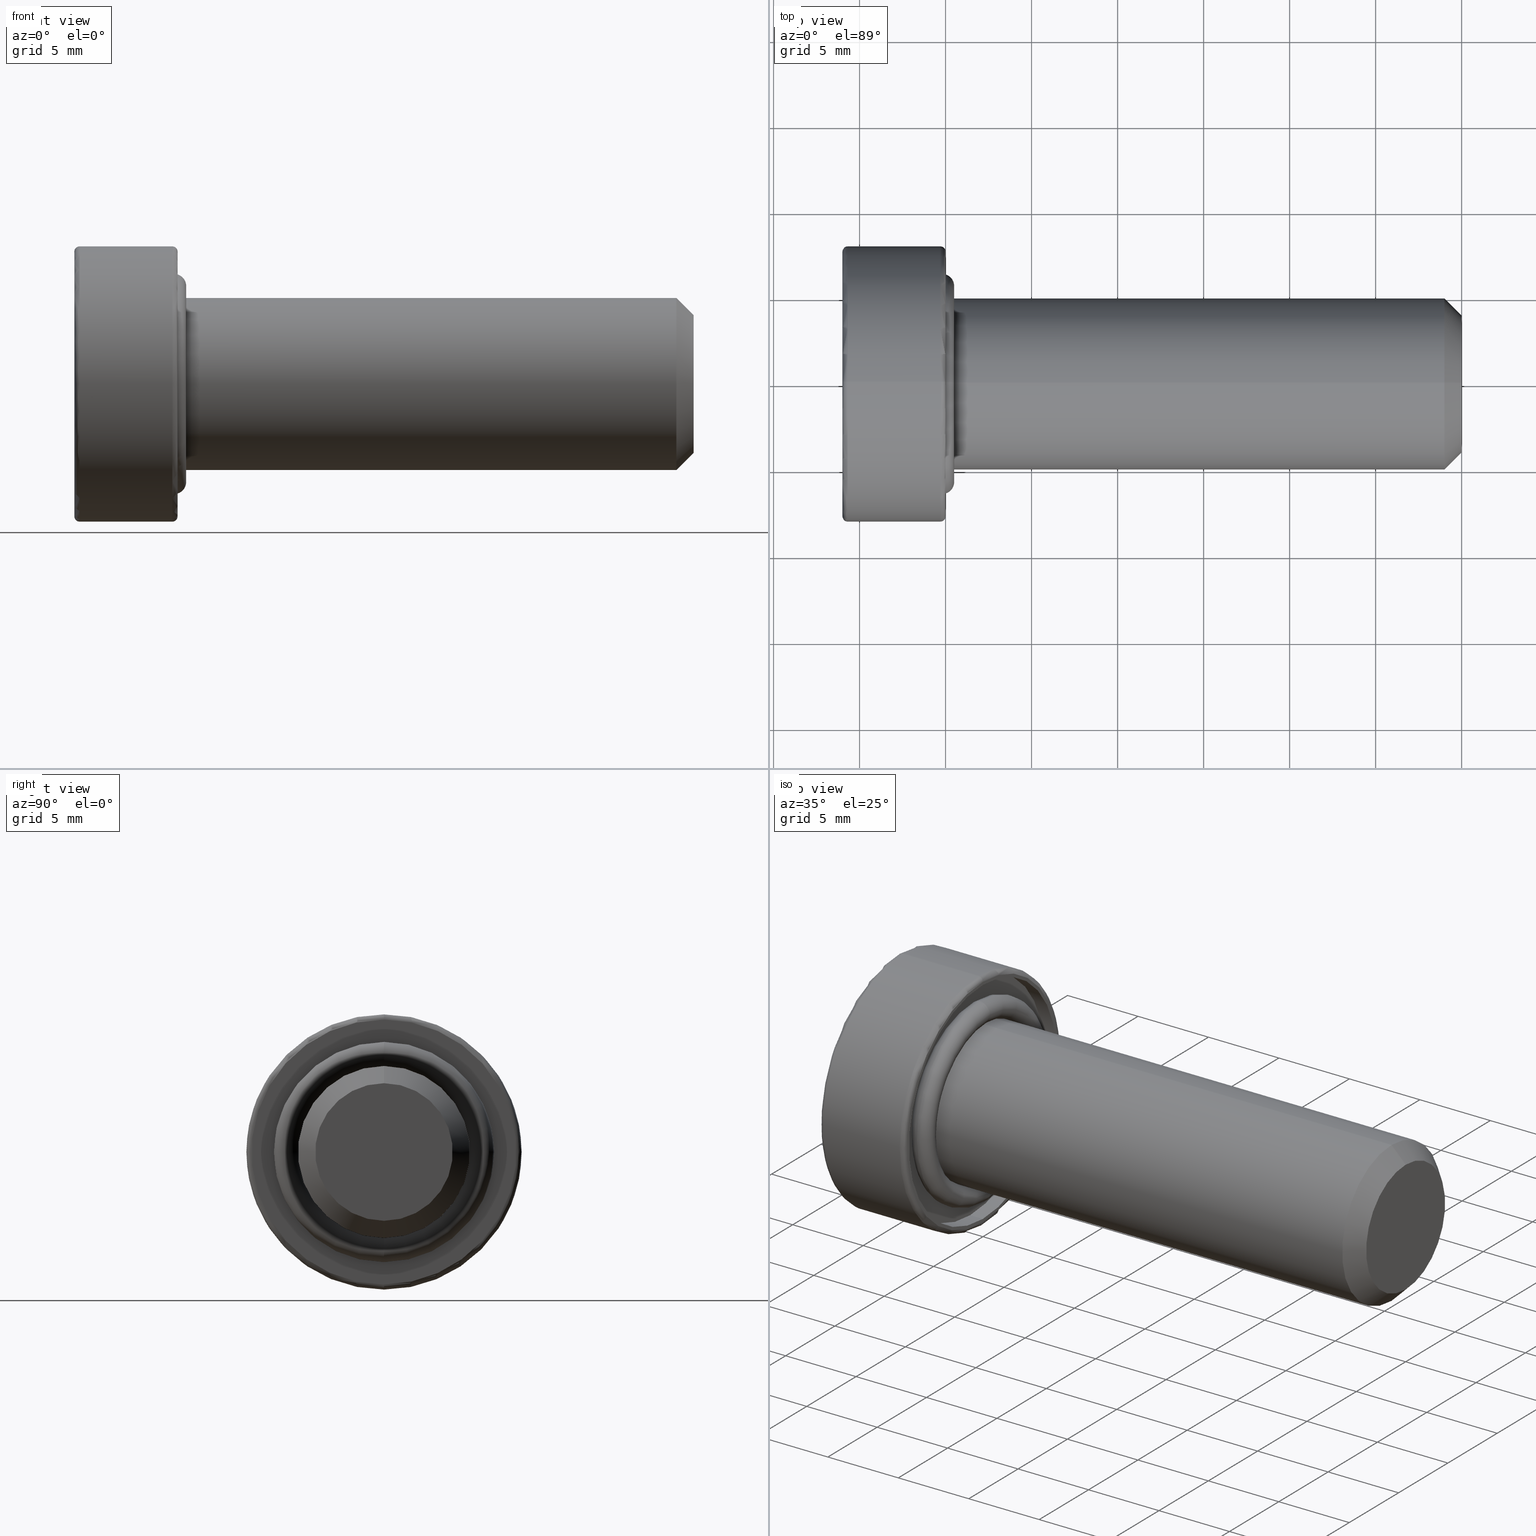
[diagram: canonical four-view strip — front | top / right | iso, engineering-drawing reading convention]
A machine part, canonical four-view strip (front | top / right | iso — engineering-drawing reading convention). The complete STEP part file that produces these views, byte-faithful:
ISO-10303-21;
HEADER;
FILE_DESCRIPTION (( 'STEP AP214' ),
    '1' );
FILE_NAME ('TL_418_M10_30.STEP',
    '2016-01-25T00:36:40',
    ( '' ),
    ( '' ),
    'SwSTEP 2.0',
    'SolidWorks 2015',
    '' );
FILE_SCHEMA (( 'AUTOMOTIVE_DESIGN' ));
ENDSEC;

DATA;
#1 = DIRECTION ( 'NONE',  ( 0.0000000000000000000, 0.0000000000000000000, -1.000000000000000000 ) ) ;
#2 = EDGE_CURVE ( 'NONE', #442, #267, #496, .T. ) ;
#3 = PRODUCT_CONTEXT ( 'NONE', #737, 'mechanical' ) ;
#4 = CARTESIAN_POINT ( 'NONE',  ( -6.000000000000000000, 1.732050807568654900, 2.999999999999611400 ) ) ;
#5 = DIRECTION ( 'NONE',  ( 1.000000000000000000, -0.0000000000000000000, -0.0000000000000000000 ) ) ;
#6 = DIRECTION ( 'NONE',  ( 0.0000000000000000000, 1.224646799147353200E-016, 1.000000000000000000 ) ) ;
#7 = TOROIDAL_SURFACE ( 'NONE', #754, 5.700000000000000200, 0.6999999999999997300 ) ;
#8 = STYLED_ITEM ( 'NONE', ( #648 ), #538 ) ;
#9 = EDGE_LOOP ( 'NONE', ( #709, #736, #11, #387 ) ) ;
#10 = CARTESIAN_POINT ( 'NONE',  ( -6.000000000000000000, -1.732050807568653800, 2.999999999999613200 ) ) ;
#11 = ORIENTED_EDGE ( 'NONE', *, *, #392, .F. ) ;
#12 = DIRECTION ( 'NONE',  ( 0.0000000000000000000, 0.0000000000000000000, -1.000000000000000000 ) ) ;
#13 = EDGE_CURVE ( 'NONE', #717, #497, #816, .T. ) ;
#14 = ORIENTED_EDGE ( 'NONE', *, *, #536, .F. ) ;
#15 = LINE ( 'NONE', #333, #327 ) ;
#16 = DIRECTION ( 'NONE',  ( 1.000000000000000000, 0.0000000000000000000, 0.0000000000000000000 ) ) ;
#17 = ADVANCED_FACE ( 'NONE', ( #666 ), #631, .T. ) ;
#18 = AXIS2_PLACEMENT_3D ( 'NONE', #807, #755, #450 ) ;
#19 = ORIENTED_EDGE ( 'NONE', *, *, #662, .T. ) ;
#20 = ORIENTED_EDGE ( 'NONE', *, *, #692, .F. ) ;
#21 = EDGE_CURVE ( 'NONE', #293, #30, #147, .T. ) ;
#22 = CARTESIAN_POINT ( 'NONE',  ( -2.000000000000000000, 3.464101615137311200, -1.734723475976807100E-015 ) ) ;
#23 = ADVANCED_FACE ( 'NONE', ( #649 ), #165, .F. ) ;
#24 = AXIS2_PLACEMENT_3D ( 'NONE', #752, #373, #1 ) ;
#25 = DIRECTION ( 'NONE',  ( -1.000000000000000000, -0.0000000000000000000, -0.0000000000000000000 ) ) ;
#26 = SURFACE_STYLE_FILL_AREA ( #474 ) ;
#27 = CONICAL_SURFACE ( 'NONE', #413, 3.999999999999996400, 0.7853981633974479500 ) ;
#28 = ORIENTED_EDGE ( 'NONE', *, *, #487, .T. ) ;
#29 = CARTESIAN_POINT ( 'NONE',  ( -2.000000000000000000, -3.464101615137309900, 0.0000000000000000000 ) ) ;
#30 = VERTEX_POINT ( 'NONE', #229 ) ;
#31 = CARTESIAN_POINT ( 'NONE',  ( -6.000000000000000000, 0.0000000000000000000, 0.0000000000000000000 ) ) ;
#32 = ORIENTED_EDGE ( 'NONE', *, *, #148, .T. ) ;
#33 = DIRECTION ( 'NONE',  ( -1.000000000000000000, -0.0000000000000000000, -0.0000000000000000000 ) ) ;
#34 = AXIS2_PLACEMENT_3D ( 'NONE', #231, #669, #290 ) ;
#35 = CIRCLE ( 'NONE', #573, 7.500000000000000000 ) ;
#36 = DIRECTION ( 'NONE',  ( 0.0000000000000000000, 0.0000000000000000000, -1.000000000000000000 ) ) ;
#37 = CARTESIAN_POINT ( 'NONE',  ( -0.2999999999999999300, 0.0000000000000000000, -8.000000000000000000 ) ) ;
#38 = AXIS2_PLACEMENT_3D ( 'NONE', #136, #193, #445 ) ;
#39 = SHAPE_REPRESENTATION ( 'TL_418_M10_30', ( #101, #18 ), #65 ) ;
#40 = EDGE_LOOP ( 'NONE', ( #632, #230, #323, #676 ) ) ;
#41 = DIRECTION ( 'NONE',  ( -1.000000000000000000, -0.0000000000000000000, -0.0000000000000000000 ) ) ;
#42 = ORIENTED_EDGE ( 'NONE', *, *, #21, .F. ) ;
#43 = ORIENTED_EDGE ( 'NONE', *, *, #790, .T. ) ;
#44 = PLANE ( 'NONE',  #369 ) ;
#45 = EDGE_CURVE ( 'NONE', #332, #381, #476, .T. ) ;
#46 = FACE_BOUND ( 'NONE', #769, .T. ) ;
#47 = DIRECTION ( 'NONE',  ( 0.0000000000000000000, 0.0000000000000000000, -1.000000000000000000 ) ) ;
#48 = PRODUCT_DEFINITION_SHAPE ( 'NONE', 'NONE',  #820 ) ;
#49 = FACE_OUTER_BOUND ( 'NONE', #500, .T. ) ;
#50 = ORIENTED_EDGE ( 'NONE', *, *, #749, .T. ) ;
#51 = DIRECTION ( 'NONE',  ( -0.0000000000000000000, -0.5000000000000008900, -0.8660254037844381500 ) ) ;
#52 = VERTEX_POINT ( 'NONE', #135 ) ;
#53 = AXIS2_PLACEMENT_3D ( 'NONE', #22, #150, #584 ) ;
#54 = EDGE_LOOP ( 'NONE', ( #32, #529, #509, #795 ) ) ;
#55 = EDGE_LOOP ( 'NONE', ( #468, #421, #217, #818 ) ) ;
#56 = CARTESIAN_POINT ( 'NONE',  ( 0.0000000000000000000, 0.0000000000000000000, 0.0000000000000000000 ) ) ;
#57 = DIRECTION ( 'NONE',  ( 0.0000000000000000000, 1.000000000000000000, -1.224646799147353200E-016 ) ) ;
#58 = DIRECTION ( 'NONE',  ( 0.0000000000000000000, 0.0000000000000000000, -1.000000000000000000 ) ) ;
#59 = EDGE_CURVE ( 'NONE', #465, #293, #291, .T. ) ;
#60 = FACE_OUTER_BOUND ( 'NONE', #419, .T. ) ;
#61 = ORIENTED_EDGE ( 'NONE', *, *, #269, .F. ) ;
#62 = CARTESIAN_POINT ( 'NONE',  ( -6.000000000000000000, -3.464101615137309900, 0.0000000000000000000 ) ) ;
#63 = DIRECTION ( 'NONE',  ( 0.0000000000000000000, 0.0000000000000000000, -1.000000000000000000 ) ) ;
#64 = ORIENTED_EDGE ( 'NONE', *, *, #173, .F. ) ;
#65 =( GEOMETRIC_REPRESENTATION_CONTEXT ( 3 ) GLOBAL_UNCERTAINTY_ASSIGNED_CONTEXT ( ( #478 ) ) GLOBAL_UNIT_ASSIGNED_CONTEXT ( ( #548, #513, #265 ) ) REPRESENTATION_CONTEXT ( 'NONE', 'WORKASPACE' ) );
#66 = EDGE_CURVE ( 'NONE', #279, #793, #458, .T. ) ;
#67 = ORIENTED_EDGE ( 'NONE', *, *, #13, .F. ) ;
#68 = DIRECTION ( 'NONE',  ( 0.0000000000000000000, 1.000000000000000000, -1.224646799147353200E-016 ) ) ;
#69 = DIRECTION ( 'NONE',  ( 1.000000000000000000, 0.0000000000000000000, 0.0000000000000000000 ) ) ;
#70 = LINE ( 'NONE', #596, #215 ) ;
#71 = CYLINDRICAL_SURFACE ( 'NONE', #330, 7.500000000000000000 ) ;
#72 = ORIENTED_EDGE ( 'NONE', *, *, #403, .F. ) ;
#73 = ORIENTED_EDGE ( 'NONE', *, *, #777, .T. ) ;
#74 = PRODUCT_CONTEXT ( 'NONE', #696, 'mechanical' ) ;
#75 = VERTEX_POINT ( 'NONE', #304 ) ;
#76 = ORIENTED_EDGE ( 'NONE', *, *, #621, .F. ) ;
#77 = DIRECTION ( 'NONE',  ( 1.000000000000000000, 0.0000000000000000000, 0.0000000000000000000 ) ) ;
#78 = LINE ( 'NONE', #702, #724 ) ;
#79 = AXIS2_PLACEMENT_3D ( 'NONE', #110, #544, #172 ) ;
#80 = DIRECTION ( 'NONE',  ( 0.0000000000000000000, 0.0000000000000000000, -1.000000000000000000 ) ) ;
#81 = CARTESIAN_POINT ( 'NONE',  ( 0.0000000000000000000, 0.0000000000000000000, 0.0000000000000000000 ) ) ;
#82 = DIRECTION ( 'NONE',  ( 1.000000000000000000, 0.0000000000000000000, 0.0000000000000000000 ) ) ;
#83 = AXIS2_PLACEMENT_3D ( 'NONE', #627, #612, #185 ) ;
#84 = ORIENTED_EDGE ( 'NONE', *, *, #786, .T. ) ;
#85 = DIRECTION ( 'NONE',  ( 1.000000000000000000, 0.0000000000000000000, 0.0000000000000000000 ) ) ;
#86 = LINE ( 'NONE', #720, #236 ) ;
#87 = FACE_OUTER_BOUND ( 'NONE', #707, .T. ) ;
#88 = SURFACE_SIDE_STYLE ('',( #664 ) ) ;
#89 = EDGE_CURVE ( 'NONE', #111, #602, #773, .T. ) ;
#90 = ORIENTED_EDGE ( 'NONE', *, *, #582, .T. ) ;
#91 = CARTESIAN_POINT ( 'NONE',  ( -2.000000000000000000, 3.464101615137311200, -1.734723475976807100E-015 ) ) ;
#92 = PRESENTATION_LAYER_ASSIGNMENT (  '', '', ( #8 ) ) ;
#93 = TOROIDAL_SURFACE ( 'NONE', #353, 5.700000000000000200, 0.6999999999999997300 ) ;
#94 = ADVANCED_FACE ( 'NONE', ( #309 ), #606, .T. ) ;
#95 = EDGE_CURVE ( 'NONE', #497, #717, #436, .T. ) ;
#96 = VECTOR ( 'NONE', #549, 999.9999999999998900 ) ;
#97 = VERTEX_POINT ( 'NONE', #634 ) ;
#98 = SURFACE_SIDE_STYLE ('',( #26 ) ) ;
#99 = PRODUCT ( 'screw', 'screw', '', ( #3 ) ) ;
#100 = DIRECTION ( 'NONE',  ( 1.000000000000000000, -0.0000000000000000000, -0.0000000000000000000 ) ) ;
#101 = AXIS2_PLACEMENT_3D ( 'NONE', #81, #750, #200 ) ;
#102 = UNCERTAINTY_MEASURE_WITH_UNIT (LENGTH_MEASURE( 1.000000000000000100E-005 ), #113, 'distance_accuracy_value', 'NONE');
#103 = EDGE_CURVE ( 'NONE', #793, #279, #167, .T. ) ;
#104 = CIRCLE ( 'NONE', #261, 0.7000000000000000700 ) ;
#105 = CARTESIAN_POINT ( 'NONE',  ( -0.9000000000000000200, 0.0000000000000000000, -7.500000000000000000 ) ) ;
#106 = FACE_OUTER_BOUND ( 'NONE', #40, .T. ) ;
#107 = ORIENTED_EDGE ( 'NONE', *, *, #521, .F. ) ;
#108 = ORIENTED_EDGE ( 'NONE', *, *, #448, .T. ) ;
#109 = VERTEX_POINT ( 'NONE', #572 ) ;
#110 = CARTESIAN_POINT ( 'NONE',  ( -0.2999999999999999300, 0.0000000000000000000, 0.0000000000000000000 ) ) ;
#111 = VERTEX_POINT ( 'NONE', #564 ) ;
#112 = DIRECTION ( 'NONE',  ( 0.0000000000000000000, 0.0000000000000000000, -1.000000000000000000 ) ) ;
#113 =( LENGTH_UNIT ( ) NAMED_UNIT ( * ) SI_UNIT ( .MILLI., .METRE. ) );
#114 = TOROIDAL_SURFACE ( 'NONE', #123, 5.700000000000000200, 0.6999999999999997300 ) ;
#115 = CARTESIAN_POINT ( 'NONE',  ( -0.9000000000000000200, 6.123233995736766300E-016, -5.000000000000000000 ) ) ;
#116 = CARTESIAN_POINT ( 'NONE',  ( -0.2000000000000000900, 0.0000000000000000000, -5.700000000000000200 ) ) ;
#117 = VECTOR ( 'NONE', #697, 1000.000000000000000 ) ;
#118 = DIRECTION ( 'NONE',  ( 1.000000000000000000, 0.0000000000000000000, 0.0000000000000000000 ) ) ;
#119 = LINE ( 'NONE', #241, #764 ) ;
#120 = ORIENTED_EDGE ( 'NONE', *, *, #283, .T. ) ;
#121 = DIRECTION ( 'NONE',  ( 1.000000000000000000, -0.0000000000000000000, -0.0000000000000000000 ) ) ;
#122 = DIRECTION ( 'NONE',  ( 1.000000000000000000, 0.0000000000000000000, 0.0000000000000000000 ) ) ;
#123 = AXIS2_PLACEMENT_3D ( 'NONE', #411, #169, #729 ) ;
#124 = CARTESIAN_POINT ( 'NONE',  ( -2.000000000000000000, -3.464101615137309900, 0.0000000000000000000 ) ) ;
#125 = EDGE_LOOP ( 'NONE', ( #120, #651, #539, #171 ) ) ;
#126 = AXIS2_PLACEMENT_3D ( 'NONE', #728, #122, #288 ) ;
#127 = DIRECTION ( 'NONE',  ( 1.000000000000000000, -0.0000000000000000000, -0.0000000000000000000 ) ) ;
#128 = VECTOR ( 'NONE', #429, 1000.000000000000000 ) ;
#129 = EDGE_LOOP ( 'NONE', ( #589, #361, #140, #452 ) ) ;
#130 = CARTESIAN_POINT ( 'NONE',  ( -0.9000000000000000200, 0.0000000000000000000, 0.0000000000000000000 ) ) ;
#131 = VERTEX_POINT ( 'NONE', #37 ) ;
#132 = EDGE_CURVE ( 'NONE', #798, #109, #275, .T. ) ;
#133 = APPLICATION_PROTOCOL_DEFINITION ( 'draft international standard', 'automotive_design', 1998, #696 ) ;
#134 = CARTESIAN_POINT ( 'NONE',  ( -2.000000000000000000, -3.464101615137309900, 0.0000000000000000000 ) ) ;
#135 = CARTESIAN_POINT ( 'NONE',  ( -2.000000000000000000, 1.732050807568654900, 2.999999999999611400 ) ) ;
#136 = CARTESIAN_POINT ( 'NONE',  ( -0.2000000000000000900, 0.0000000000000000000, 0.0000000000000000000 ) ) ;
#137 = MECHANICAL_DESIGN_GEOMETRIC_PRESENTATION_REPRESENTATION (  '', ( #8 ), #177 ) ;
#138 = CIRCLE ( 'NONE', #810, 5.000000000000000000 ) ;
#139 = CIRCLE ( 'NONE', #194, 3.999999999999996400 ) ;
#140 = ORIENTED_EDGE ( 'NONE', *, *, #473, .F. ) ;
#141 = ORIENTED_EDGE ( 'NONE', *, *, #530, .T. ) ;
#142 = ORIENTED_EDGE ( 'NONE', *, *, #437, .T. ) ;
#143 = CARTESIAN_POINT ( 'NONE',  ( 0.0000000000000000000, 0.0000000000000000000, 0.0000000000000000000 ) ) ;
#144 = EDGE_CURVE ( 'NONE', #52, #778, #587, .T. ) ;
#145 = CARTESIAN_POINT ( 'NONE',  ( 28.99999999999999300, 0.0000000000000000000, 0.0000000000000000000 ) ) ;
#146 = PRODUCT_DEFINITION ( 'UNKNOWN', '', #348, #396 ) ;
#147 = CIRCLE ( 'NONE', #603, 0.2999999999999999300 ) ;
#148 = EDGE_CURVE ( 'NONE', #602, #465, #753, .T. ) ;
#149 = ADVANCED_FACE ( 'NONE', ( #106 ), #395, .F. ) ;
#150 = DIRECTION ( 'NONE',  ( -0.0000000000000000000, 0.8660254037844383700, 0.5000000000000006700 ) ) ;
#151 = EDGE_LOOP ( 'NONE', ( #591, #142 ) ) ;
#152 = EDGE_LOOP ( 'NONE', ( #379, #159, #819, #599 ) ) ;
#153 = ORIENTED_EDGE ( 'NONE', *, *, #609, .T. ) ;
#154 =( LENGTH_UNIT ( ) NAMED_UNIT ( * ) SI_UNIT ( .MILLI., .METRE. ) );
#155 = AXIS2_PLACEMENT_3D ( 'NONE', #563, #69, #502 ) ;
#156 = PRODUCT_DEFINITION_SHAPE ( 'NONE', 'NONE',  #232 ) ;
#157 = VECTOR ( 'NONE', #188, 1000.000000000000000 ) ;
#158 = ORIENTED_EDGE ( 'NONE', *, *, #2, .T. ) ;
#159 = ORIENTED_EDGE ( 'NONE', *, *, #433, .F. ) ;
#160 = CARTESIAN_POINT ( 'NONE',  ( -0.9000000000000000200, 0.0000000000000000000, 0.0000000000000000000 ) ) ;
#161 = ADVANCED_FACE ( 'NONE', ( #87 ), #71, .F. ) ;
#162 = CARTESIAN_POINT ( 'NONE',  ( -5.700000000000000200, 0.0000000000000000000, 0.0000000000000000000 ) ) ;
#163 =( LENGTH_UNIT ( ) NAMED_UNIT ( * ) SI_UNIT ( .MILLI., .METRE. ) );
#164 = FACE_BOUND ( 'NONE', #611, .T. ) ;
#165 = PLANE ( 'NONE',  #727 ) ;
#166 = PRODUCT ( 'TL_418_M10_30', 'TL_418_M10_30', '', ( #74 ) ) ;
#167 = CIRCLE ( 'NONE', #83, 0.7000000000000000700 ) ;
#168 = AXIS2_PLACEMENT_3D ( 'NONE', #760, #639, #63 ) ;
#169 = DIRECTION ( 'NONE',  ( 1.000000000000000000, -0.0000000000000000000, -0.0000000000000000000 ) ) ;
#170 = ORIENTED_EDGE ( 'NONE', *, *, #345, .T. ) ;
#171 = ORIENTED_EDGE ( 'NONE', *, *, #733, .T. ) ;
#172 = DIRECTION ( 'NONE',  ( 0.0000000000000000000, 0.0000000000000000000, -1.000000000000000000 ) ) ;
#173 = EDGE_CURVE ( 'NONE', #610, #332, #255, .T. ) ;
#174 = LINE ( 'NONE', #747, #356 ) ;
#175 = DIRECTION ( 'NONE',  ( 0.0000000000000000000, -1.000000000000000000, 5.007715329124508700E-016 ) ) ;
#176 = EDGE_LOOP ( 'NONE', ( #541, #425 ) ) ;
#177 =( GEOMETRIC_REPRESENTATION_CONTEXT ( 3 ) GLOBAL_UNCERTAINTY_ASSIGNED_CONTEXT ( ( #389 ) ) GLOBAL_UNIT_ASSIGNED_CONTEXT ( ( #154, #590, #214 ) ) REPRESENTATION_CONTEXT ( 'NONE', 'WORKASPACE' ) );
#178 = DIRECTION ( 'NONE',  ( 1.000000000000000000, 0.0000000000000000000, 0.0000000000000000000 ) ) ;
#179 = ORIENTED_EDGE ( 'NONE', *, *, #777, .F. ) ;
#180 = SURFACE_SIDE_STYLE ('',( #533 ) ) ;
#181 = DIRECTION ( 'NONE',  ( 0.0000000000000000000, -1.000000000000000000, 0.0000000000000000000 ) ) ;
#182 = DIRECTION ( 'NONE',  ( 0.0000000000000000000, 0.0000000000000000000, -1.000000000000000000 ) ) ;
#183 = EDGE_CURVE ( 'NONE', #793, #570, #569, .T. ) ;
#184 = DIRECTION ( 'NONE',  ( 0.0000000000000000000, -0.8660254037844387100, -0.4999999999999999400 ) ) ;
#185 = DIRECTION ( 'NONE',  ( 0.0000000000000000000, 0.0000000000000000000, -1.000000000000000000 ) ) ;
#186 = VECTOR ( 'NONE', #212, 1000.000000000000100 ) ;
#187 = ORIENTED_EDGE ( 'NONE', *, *, #743, .T. ) ;
#188 = DIRECTION ( 'NONE',  ( -0.0000000000000000000, -1.000000000000000000, -0.0000000000000000000 ) ) ;
#189 = EDGE_CURVE ( 'NONE', #131, #784, #237, .T. ) ;
#190 = UNCERTAINTY_MEASURE_WITH_UNIT (LENGTH_MEASURE( 1.000000000000000100E-005 ), #246, 'distance_accuracy_value', 'NONE');
#191 = CARTESIAN_POINT ( 'NONE',  ( -0.2000000000000001800, 0.0000000000000000000, 0.0000000000000000000 ) ) ;
#192 = ORIENTED_EDGE ( 'NONE', *, *, #144, .F. ) ;
#193 = DIRECTION ( 'NONE',  ( 1.000000000000000000, -0.0000000000000000000, -0.0000000000000000000 ) ) ;
#194 = AXIS2_PLACEMENT_3D ( 'NONE', #571, #196, #638 ) ;
#195 = CIRCLE ( 'NONE', #426, 5.000000000000000000 ) ;
#196 = DIRECTION ( 'NONE',  ( 1.000000000000000000, 0.0000000000000000000, 0.0000000000000000000 ) ) ;
#197 = FACE_OUTER_BOUND ( 'NONE', #364, .T. ) ;
#198 = EDGE_LOOP ( 'NONE', ( #660, #546, #108, #187 ) ) ;
#199 = CARTESIAN_POINT ( 'NONE',  ( 0.0000000000000000000, 9.184850993605147900E-016, 7.500000000000000000 ) ) ;
#200 = DIRECTION ( 'NONE',  ( 1.000000000000000000, 0.0000000000000000000, 0.0000000000000000000 ) ) ;
#201 = CARTESIAN_POINT ( 'NONE',  ( -6.000000000000000000, 0.0000000000000000000, 0.0000000000000000000 ) ) ;
#202 = DIRECTION ( 'NONE',  ( 0.0000000000000000000, 0.0000000000000000000, -1.000000000000000000 ) ) ;
#203 = AXIS2_PLACEMENT_3D ( 'NONE', #347, #792, #605 ) ;
#204 = TOROIDAL_SURFACE ( 'NONE', #740, 7.700000000000000200, 0.2999999999999999900 ) ;
#205 = CARTESIAN_POINT ( 'NONE',  ( -2.000000000000000000, -1.732050807568653800, 2.999999999999613200 ) ) ;
#206 = VERTEX_POINT ( 'NONE', #115 ) ;
#207 = DIRECTION ( 'NONE',  ( 0.0000000000000000000, 0.0000000000000000000, -1.000000000000000000 ) ) ;
#208 = AXIS2_PLACEMENT_3D ( 'NONE', #803, #121, #307 ) ;
#209 = ADVANCED_FACE ( 'NONE', ( #378 ), #695, .T. ) ;
#210 = ORIENTED_EDGE ( 'NONE', *, *, #530, .F. ) ;
#211 = EDGE_LOOP ( 'NONE', ( #581, #804, #258, #453 ) ) ;
#212 = DIRECTION ( 'NONE',  ( -0.0000000000000000000, 0.5000000000000005600, -0.8660254037844382600 ) ) ;
#213 = ADVANCED_FACE ( 'NONE', ( #714 ), #27, .T. ) ;
#214 =( NAMED_UNIT ( * ) SI_UNIT ( $, .STERADIAN. ) SOLID_ANGLE_UNIT ( ) );
#215 = VECTOR ( 'NONE', #33, 1000.000000000000000 ) ;
#216 = FACE_OUTER_BOUND ( 'NONE', #311, .T. ) ;
#217 = ORIENTED_EDGE ( 'NONE', *, *, #790, .F. ) ;
#218 = PLANE ( 'NONE',  #382 ) ;
#219 = ORIENTED_EDGE ( 'NONE', *, *, #692, .T. ) ;
#220 = DIRECTION ( 'NONE',  ( -1.000000000000000000, -0.0000000000000000000, -0.0000000000000000000 ) ) ;
#221 = AXIS2_PLACEMENT_3D ( 'NONE', #398, #25, #466 ) ;
#222 = VERTEX_POINT ( 'NONE', #484 ) ;
#223 = ADVANCED_FACE ( 'NONE', ( #197 ), #800, .F. ) ;
#224 = EDGE_CURVE ( 'NONE', #477, #570, #525, .T. ) ;
#225 = TOROIDAL_SURFACE ( 'NONE', #482, 7.700000000000000200, 0.2999999999999999900 ) ;
#226 = CARTESIAN_POINT ( 'NONE',  ( -6.000000000000000000, -3.464101615137309900, 0.0000000000000000000 ) ) ;
#227 = ORIENTED_EDGE ( 'NONE', *, *, #273, .F. ) ;
#228 =( NAMED_UNIT ( * ) SI_UNIT ( $, .STERADIAN. ) SOLID_ANGLE_UNIT ( ) );
#229 = CARTESIAN_POINT ( 'NONE',  ( 0.0000000000000000000, 9.613477373306721400E-016, 7.700000000000000200 ) ) ;
#230 = ORIENTED_EDGE ( 'NONE', *, *, #386, .T. ) ;
#231 = CARTESIAN_POINT ( 'NONE',  ( -5.700000000000000200, 0.0000000000000000000, 0.0000000000000000000 ) ) ;
#232 = PRODUCT_DEFINITION ( 'UNKNOWN', '', #272, #504 ) ;
#233 = EDGE_CURVE ( 'NONE', #570, #793, #545, .T. ) ;
#234 = ORIENTED_EDGE ( 'NONE', *, *, #609, .F. ) ;
#235 = DIRECTION ( 'NONE',  ( 0.0000000000000000000, 0.5000000000000008900, 0.8660254037844381500 ) ) ;
#236 = VECTOR ( 'NONE', #220, 1000.000000000000000 ) ;
#237 = CIRCLE ( 'NONE', #252, 0.2999999999999999300 ) ;
#238 = AXIS2_PLACEMENT_3D ( 'NONE', #567, #257, #693 ) ;
#239 = CARTESIAN_POINT ( 'NONE',  ( 28.99999999999999300, 6.123233995736766300E-016, -5.000000000000000000 ) ) ;
#240 = ORIENTED_EDGE ( 'NONE', *, *, #786, .F. ) ;
#241 = CARTESIAN_POINT ( 'NONE',  ( 30.00000000000000000, 4.898587196589408900E-016, -3.999999999999996400 ) ) ;
#242 = EDGE_LOOP ( 'NONE', ( #372, #528, #739, #491 ) ) ;
#243 = CARTESIAN_POINT ( 'NONE',  ( -6.000000000000000000, -1.732050807568655800, -2.999999999999614100 ) ) ;
#244 = CARTESIAN_POINT ( 'NONE',  ( 0.0000000000000000000, 0.0000000000000000000, 0.0000000000000000000 ) ) ;
#245 = APPLICATION_PROTOCOL_DEFINITION ( 'draft international standard', 'automotive_design', 1998, #737 ) ;
#246 =( LENGTH_UNIT ( ) NAMED_UNIT ( * ) SI_UNIT ( .MILLI., .METRE. ) );
#247 = FACE_OUTER_BOUND ( 'NONE', #55, .T. ) ;
#248 = AXIS2_PLACEMENT_3D ( 'NONE', #479, #607, #235 ) ;
#249 = DIRECTION ( 'NONE',  ( 1.000000000000000000, -0.0000000000000000000, -0.0000000000000000000 ) ) ;
#250 = UNCERTAINTY_MEASURE_WITH_UNIT (LENGTH_MEASURE( 1.000000000000000100E-005 ), #163, 'distance_accuracy_value', 'NONE');
#251 = CARTESIAN_POINT ( 'NONE',  ( 28.99999999999999300, 0.0000000000000000000, 5.000000000000000000 ) ) ;
#252 = AXIS2_PLACEMENT_3D ( 'NONE', #625, #181, #746 ) ;
#253 = DIRECTION ( 'NONE',  ( 0.0000000000000000000, 0.0000000000000000000, -1.000000000000000000 ) ) ;
#254 = LINE ( 'NONE', #29, #566 ) ;
#255 = LINE ( 'NONE', #679, #732 ) ;
#256 = ORIENTED_EDGE ( 'NONE', *, *, #703, .F. ) ;
#257 = DIRECTION ( 'NONE',  ( 1.000000000000000000, -0.0000000000000000000, 0.0000000000000000000 ) ) ;
#258 = ORIENTED_EDGE ( 'NONE', *, *, #703, .T. ) ;
#259 = DIRECTION ( 'NONE',  ( -0.0000000000000000000, -1.000000000000000000, -0.0000000000000000000 ) ) ;
#260 = CARTESIAN_POINT ( 'NONE',  ( 0.0000000000000000000, 0.0000000000000000000, 0.0000000000000000000 ) ) ;
#261 = AXIS2_PLACEMENT_3D ( 'NONE', #282, #718, #337 ) ;
#262 = FACE_OUTER_BOUND ( 'NONE', #9, .T. ) ;
#263 = DIRECTION ( 'NONE',  ( 0.0000000000000000000, 0.0000000000000000000, -1.000000000000000000 ) ) ;
#264 = CIRCLE ( 'NONE', #399, 7.700000000000000200 ) ;
#265 =( NAMED_UNIT ( * ) SI_UNIT ( $, .STERADIAN. ) SOLID_ANGLE_UNIT ( ) );
#266 = LINE ( 'NONE', #420, #96 ) ;
#267 = VERTEX_POINT ( 'NONE', #742 ) ;
#268 = DIRECTION ( 'NONE',  ( 0.0000000000000000000, 0.0000000000000000000, 1.000000000000000000 ) ) ;
#269 = EDGE_CURVE ( 'NONE', #339, #412, #674, .T. ) ;
#270 = ADVANCED_FACE ( 'NONE', ( #216 ), #558, .F. ) ;
#271 = DIRECTION ( 'NONE',  ( 0.0000000000000000000, 0.0000000000000000000, -1.000000000000000000 ) ) ;
#272 = PRODUCT_DEFINITION_FORMATION_WITH_SPECIFIED_SOURCE ( 'ANY', '', #166, .NOT_KNOWN. ) ;
#273 = EDGE_CURVE ( 'NONE', #294, #358, #174, .T. ) ;
#274 = CIRCLE ( 'NONE', #221, 8.000000000000000000 ) ;
#275 = CIRCLE ( 'NONE', #126, 3.999999999999996400 ) ;
#276 = FILL_AREA_STYLE_COLOUR ( '', #815 ) ;
#277 = ITEM_DEFINED_TRANSFORMATION ( 'NONE', 'NONE', #18,  #494 ) ;
#278 = ADVANCED_FACE ( 'NONE', ( #336 ), #7, .T. ) ;
#279 = VERTEX_POINT ( 'NONE', #684 ) ;
#280 = AXIS2_PLACEMENT_3D ( 'NONE', #260, #700, #321 ) ;
#281 = EDGE_LOOP ( 'NONE', ( #766, #409, #441, #227 ) ) ;
#282 = CARTESIAN_POINT ( 'NONE',  ( -0.2000000000000000900, 6.980486755139913100E-016, 5.700000000000000200 ) ) ;
#283 = EDGE_CURVE ( 'NONE', #381, #75, #657, .T. ) ;
#284 = FACE_OUTER_BOUND ( 'NONE', #211, .T. ) ;
#285 = LINE ( 'NONE', #134, #117 ) ;
#286 = TOROIDAL_SURFACE ( 'NONE', #408, 7.700000000000000200, 0.2999999999999999900 ) ;
#287 = DIRECTION ( 'NONE',  ( -0.0000000000000000000, -0.4999999999999999400, 0.8660254037844387100 ) ) ;
#288 = DIRECTION ( 'NONE',  ( 0.0000000000000000000, 0.0000000000000000000, -1.000000000000000000 ) ) ;
#289 = AXIS2_PLACEMENT_3D ( 'NONE', #130, #734, #668 ) ;
#290 = DIRECTION ( 'NONE',  ( 0.0000000000000000000, 0.0000000000000000000, -1.000000000000000000 ) ) ;
#291 = LINE ( 'NONE', #748, #128 ) ;
#292 = CARTESIAN_POINT ( 'NONE',  ( -5.700000000000000200, 0.0000000000000000000, -7.700000000000000200 ) ) ;
#293 = VERTEX_POINT ( 'NONE', #560 ) ;
#294 = VERTEX_POINT ( 'NONE', #251 ) ;
#295 = CARTESIAN_POINT ( 'NONE',  ( -2.000000000000000000, -1.732050807568655800, -2.999999999999614100 ) ) ;
#296 = CARTESIAN_POINT ( 'NONE',  ( 30.00000000000000000, 0.0000000000000000000, 0.0000000000000000000 ) ) ;
#297 = DIRECTION ( 'NONE',  ( -1.000000000000000000, -0.0000000000000000000, -0.0000000000000000000 ) ) ;
#298 = CARTESIAN_POINT ( 'NONE',  ( 0.0000000000000000000, 0.0000000000000000000, -7.700000000000000200 ) ) ;
#299 = FACE_OUTER_BOUND ( 'NONE', #653, .T. ) ;
#300 = VERTEX_POINT ( 'NONE', #687 ) ;
#302 = EDGE_LOOP ( 'NONE', ( #42, #338, #380, #72 ) ) ;
#301 = CIRCLE ( 'NONE', #79, 8.000000000000000000 ) ;
#303 = ORIENTED_EDGE ( 'NONE', *, *, #536, .T. ) ;
#304 = CARTESIAN_POINT ( 'NONE',  ( -6.000000000000000000, -1.732050807568655800, -2.999999999999614100 ) ) ;
#305 = APPLICATION_CONTEXT ( 'automotive_design' ) ;
#306 =( NAMED_UNIT ( * ) SI_UNIT ( $, .STERADIAN. ) SOLID_ANGLE_UNIT ( ) );
#307 = DIRECTION ( 'NONE',  ( 0.0000000000000000000, 0.0000000000000000000, -1.000000000000000000 ) ) ;
#308 = EDGE_CURVE ( 'NONE', #222, #465, #319, .T. ) ;
#309 = FACE_OUTER_BOUND ( 'NONE', #486, .T. ) ;
#310 = PRODUCT_RELATED_PRODUCT_CATEGORY ( 'part', '', ( #166 ) ) ;
#311 = EDGE_LOOP ( 'NONE', ( #219, #342, #234, #19 ) ) ;
#312 = EDGE_CURVE ( 'NONE', #279, #477, #802, .T. ) ;
#313 = PLANE ( 'NONE',  #155 ) ;
#314 = ORIENTED_EDGE ( 'NONE', *, *, #45, .F. ) ;
#315 = CARTESIAN_POINT ( 'NONE',  ( -0.9000000000000000200, 0.0000000000000000000, 5.000000000000000000 ) ) ;
#316 = AXIS2_PLACEMENT_3D ( 'NONE', #201, #644, #263 ) ;
#317 = CARTESIAN_POINT ( 'NONE',  ( -6.000000000000000000, 1.732050807568653600, -2.999999999999614100 ) ) ;
#318 = DIRECTION ( 'NONE',  ( 1.000000000000000000, 0.0000000000000000000, 0.0000000000000000000 ) ) ;
#319 = CIRCLE ( 'NONE', #670, 0.2999999999999999300 ) ;
#320 = ORIENTED_EDGE ( 'NONE', *, *, #480, .F. ) ;
#321 = DIRECTION ( 'NONE',  ( 0.0000000000000000000, 0.0000000000000000000, -1.000000000000000000 ) ) ;
#322 = EDGE_CURVE ( 'NONE', #431, #300, #485, .T. ) ;
#323 = ORIENTED_EDGE ( 'NONE', *, *, #322, .T. ) ;
#324 = DIRECTION ( 'NONE',  ( -1.000000000000000000, -0.0000000000000000000, -0.0000000000000000000 ) ) ;
#325 = AXIS2_PLACEMENT_3D ( 'NONE', #552, #178, #618 ) ;
#326 = CYLINDRICAL_SURFACE ( 'NONE', #203, 8.000000000000000000 ) ;
#327 = VECTOR ( 'NONE', #393, 1000.000000000000000 ) ;
#328 = VECTOR ( 'NONE', #551, 1000.000000000000000 ) ;
#329 = ORIENTED_EDGE ( 'NONE', *, *, #392, .T. ) ;
#330 = AXIS2_PLACEMENT_3D ( 'NONE', #506, #127, #182 ) ;
#331 = ADVANCED_BREP_SHAPE_REPRESENTATION ( '', ( #538, #686, #494 ), #455 ) ;
#332 = VERTEX_POINT ( 'NONE', #630 ) ;
#333 = CARTESIAN_POINT ( 'NONE',  ( -2.000000000000000000, 1.732050807568654900, 2.999999999999611400 ) ) ;
#334 = DIRECTION ( 'NONE',  ( -0.0000000000000000000, -0.4999999999999999400, 0.8660254037844387100 ) ) ;
#335 = ADVANCED_FACE ( 'NONE', ( #49 ), #313, .T. ) ;
#336 = FACE_OUTER_BOUND ( 'NONE', #642, .T. ) ;
#337 = DIRECTION ( 'NONE',  ( 0.0000000000000000000, 1.224646799147353500E-016, 1.000000000000000000 ) ) ;
#338 = ORIENTED_EDGE ( 'NONE', *, *, #743, .F. ) ;
#339 = VERTEX_POINT ( 'NONE', #62 ) ;
#340 = CARTESIAN_POINT ( 'NONE',  ( -0.9000000000000000200, 0.0000000000000000000, 0.0000000000000000000 ) ) ;
#341 = AXIS2_PLACEMENT_3D ( 'NONE', #340, #783, #404 ) ;
#342 = ORIENTED_EDGE ( 'NONE', *, *, #362, .F. ) ;
#343 = DIRECTION ( 'NONE',  ( 1.000000000000000000, 0.0000000000000000000, 0.0000000000000000000 ) ) ;
#344 = ADVANCED_FACE ( 'NONE', ( #299 ), #691, .F. ) ;
#345 = EDGE_CURVE ( 'NONE', #412, #778, #782, .T. ) ;
#346 = LINE ( 'NONE', #652, #186 ) ;
#347 = CARTESIAN_POINT ( 'NONE',  ( -6.000000000000000000, 0.0000000000000000000, 0.0000000000000000000 ) ) ;
#348 = PRODUCT_DEFINITION_FORMATION_WITH_SPECIFIED_SOURCE ( 'ANY', '', #99, .NOT_KNOWN. ) ;
#349 = ORIENTED_EDGE ( 'NONE', *, *, #629, .F. ) ;
#350 = EDGE_CURVE ( 'NONE', #109, #798, #139, .T. ) ;
#351 = CARTESIAN_POINT ( 'NONE',  ( -2.000000000000000000, 1.732050807568654900, 2.999999999999611400 ) ) ;
#352 = DIRECTION ( 'NONE',  ( -0.0000000000000000000, 0.5000000000000005600, -0.8660254037844382600 ) ) ;
#353 = AXIS2_PLACEMENT_3D ( 'NONE', #505, #640, #761 ) ;
#354 = TOROIDAL_SURFACE ( 'NONE', #597, 7.700000000000000200, 0.2999999999999999900 ) ;
#355 = DIRECTION ( 'NONE',  ( -1.000000000000000000, 0.0000000000000000000, -0.0000000000000000000 ) ) ;
#356 = VECTOR ( 'NONE', #371, 1000.000000000000000 ) ;
#357 = DIRECTION ( 'NONE',  ( -1.000000000000000000, 0.0000000000000000000, 0.0000000000000000000 ) ) ;
#358 = VERTEX_POINT ( 'NONE', #315 ) ;
#359 = CARTESIAN_POINT ( 'NONE',  ( 30.00000000000000000, 5.510910596163086600E-016, -3.999999999999996400 ) ) ;
#360 = CARTESIAN_POINT ( 'NONE',  ( -0.2000000000000000900, 6.980486755139913100E-016, 5.700000000000000200 ) ) ;
#361 = ORIENTED_EDGE ( 'NONE', *, *, #654, .F. ) ;
#362 = EDGE_CURVE ( 'NONE', #758, #339, #285, .T. ) ;
#363 =( NAMED_UNIT ( * ) PLANE_ANGLE_UNIT ( ) SI_UNIT ( $, .RADIAN. ) );
#364 = EDGE_LOOP ( 'NONE', ( #170, #192, #14, #418 ) ) ;
#365 = DIRECTION ( 'NONE',  ( 0.0000000000000000000, 0.0000000000000000000, 1.000000000000000000 ) ) ;
#366 = DIRECTION ( 'NONE',  ( 0.0000000000000000000, 1.224646799147353500E-016, 1.000000000000000000 ) ) ;
#367 = CARTESIAN_POINT ( 'NONE',  ( -2.000000000000000000, -1.732050807568653800, 2.999999999999613200 ) ) ;
#368 = VECTOR ( 'NONE', #646, 1000.000000000000000 ) ;
#369 = AXIS2_PLACEMENT_3D ( 'NONE', #295, #738, #355 ) ;
#370 = PRESENTATION_STYLE_ASSIGNMENT (( #624 ) ) ;
#371 = DIRECTION ( 'NONE',  ( -1.000000000000000000, -0.0000000000000000000, -0.0000000000000000000 ) ) ;
#372 = ORIENTED_EDGE ( 'NONE', *, *, #183, .F. ) ;
#373 = DIRECTION ( 'NONE',  ( 1.000000000000000000, 0.0000000000000000000, 0.0000000000000000000 ) ) ;
#374 = DIRECTION ( 'NONE',  ( -1.000000000000000000, 0.0000000000000000000, 0.0000000000000000000 ) ) ;
#375 = CYLINDRICAL_SURFACE ( 'NONE', #512, 8.000000000000000000 ) ;
#376 = CARTESIAN_POINT ( 'NONE',  ( -0.9000000000000000200, 9.184850993605147900E-016, 7.500000000000000000 ) ) ;
#377 = CARTESIAN_POINT ( 'NONE',  ( -0.9000000000000000200, 0.0000000000000000000, 0.0000000000000000000 ) ) ;
#378 = FACE_OUTER_BOUND ( 'NONE', #281, .T. ) ;
#379 = ORIENTED_EDGE ( 'NONE', *, *, #308, .F. ) ;
#380 = ORIENTED_EDGE ( 'NONE', *, *, #189, .T. ) ;
#381 = VERTEX_POINT ( 'NONE', #317 ) ;
#382 = AXIS2_PLACEMENT_3D ( 'NONE', #390, #780, #401 ) ;
#383 = DIRECTION ( 'NONE',  ( -1.000000000000000000, -0.0000000000000000000, -0.0000000000000000000 ) ) ;
#384 = CIRCLE ( 'NONE', #656, 5.000000000000000000 ) ;
#385 = CARTESIAN_POINT ( 'NONE',  ( -0.2000000000000001800, 6.123233995736766300E-016, 5.000000000000000000 ) ) ;
#386 = EDGE_CURVE ( 'NONE', #497, #431, #619, .T. ) ;
#387 = ORIENTED_EDGE ( 'NONE', *, *, #173, .T. ) ;
#388 = CARTESIAN_POINT ( 'NONE',  ( 0.0000000000000000000, 0.0000000000000000000, 0.0000000000000000000 ) ) ;
#389 = UNCERTAINTY_MEASURE_WITH_UNIT (LENGTH_MEASURE( 1.000000000000000100E-005 ), #154, 'distance_accuracy_value', 'NONE');
#390 = CARTESIAN_POINT ( 'NONE',  ( -6.000000000000000000, 0.0000000000000000000, 0.0000000000000000000 ) ) ;
#391 = PRODUCT_RELATED_PRODUCT_CATEGORY ( 'part', '', ( #99 ) ) ;
#392 = EDGE_CURVE ( 'NONE', #610, #442, #467, .T. ) ;
#393 = DIRECTION ( 'NONE',  ( -0.0000000000000000000, 1.000000000000000000, -5.007715329124508700E-016 ) ) ;
#394 = VECTOR ( 'NONE', #659, 1000.000000000000000 ) ;
#395 = CYLINDRICAL_SURFACE ( 'NONE', #289, 7.500000000000000000 ) ;
#396 = PRODUCT_DEFINITION_CONTEXT ( 'detailed design', #635, 'design' ) ;
#397 = CLOSED_SHELL ( 'NONE', ( #518, #471, #209, #213, #149, #713, #647, #600, #457, #161, #655, #335, #17, #464, #776, #663, #270, #772, #721, #522, #223, #23, #344 ) ) ;
#398 = CARTESIAN_POINT ( 'NONE',  ( -0.2999999999999999300, 0.0000000000000000000, 0.0000000000000000000 ) ) ;
#399 = AXIS2_PLACEMENT_3D ( 'NONE', #763, #383, #12 ) ;
#400 = ORIENTED_EDGE ( 'NONE', *, *, #89, .F. ) ;
#401 = DIRECTION ( 'NONE',  ( 0.0000000000000000000, 0.0000000000000000000, -1.000000000000000000 ) ) ;
#402 = EDGE_LOOP ( 'NONE', ( #320, #658 ) ) ;
#403 = EDGE_CURVE ( 'NONE', #30, #784, #449, .T. ) ;
#404 = DIRECTION ( 'NONE',  ( 0.0000000000000000000, 0.0000000000000000000, -1.000000000000000000 ) ) ;
#405 = ADVANCED_FACE ( 'NONE', ( #428 ), #93, .T. ) ;
#406 = FACE_BOUND ( 'NONE', #402, .T. ) ;
#407 = DIRECTION ( 'NONE',  ( -1.000000000000000000, 0.0000000000000000000, 0.0000000000000000000 ) ) ;
#408 = AXIS2_PLACEMENT_3D ( 'NONE', #483, #799, #112 ) ;
#409 = ORIENTED_EDGE ( 'NONE', *, *, #629, .T. ) ;
#410 = DIRECTION ( 'NONE',  ( 1.000000000000000000, 0.0000000000000000000, 0.0000000000000000000 ) ) ;
#411 = CARTESIAN_POINT ( 'NONE',  ( -0.2000000000000000900, 0.0000000000000000000, 0.0000000000000000000 ) ) ;
#412 = VERTEX_POINT ( 'NONE', #10 ) ;
#413 = AXIS2_PLACEMENT_3D ( 'NONE', #296, #357, #812 ) ;
#414 = PLANE ( 'NONE',  #248 ) ;
#415 = CIRCLE ( 'NONE', #341, 5.000000000000000000 ) ;
#416 = VECTOR ( 'NONE', #297, 1000.000000000000000 ) ;
#417 = CARTESIAN_POINT ( 'NONE',  ( -6.000000000000000000, 3.464101615137311200, -1.734723475976807100E-015 ) ) ;
#418 = ORIENTED_EDGE ( 'NONE', *, *, #654, .T. ) ;
#419 = EDGE_LOOP ( 'NONE', ( #50, #64, #210, #557 ) ) ;
#420 = CARTESIAN_POINT ( 'NONE',  ( 30.00000000000000000, 0.0000000000000000000, 3.999999999999996400 ) ) ;
#421 = ORIENTED_EDGE ( 'NONE', *, *, #21, .T. ) ;
#422 = ORIENTED_EDGE ( 'NONE', *, *, #350, .T. ) ;
#423 = CARTESIAN_POINT ( 'NONE',  ( -2.000000000000000000, 1.732050807568654900, 2.999999999999611400 ) ) ;
#424 = CARTESIAN_POINT ( 'NONE',  ( 30.00000000000000000, 0.0000000000000000000, 0.0000000000000000000 ) ) ;
#425 = ORIENTED_EDGE ( 'NONE', *, *, #95, .T. ) ;
#426 = AXIS2_PLACEMENT_3D ( 'NONE', #788, #407, #36 ) ;
#427 = FACE_OUTER_BOUND ( 'NONE', #54, .T. ) ;
#428 = FACE_OUTER_BOUND ( 'NONE', #242, .T. ) ;
#429 = DIRECTION ( 'NONE',  ( 1.000000000000000000, 0.0000000000000000000, 0.0000000000000000000 ) ) ;
#430 = DIRECTION ( 'NONE',  ( 0.0000000000000000000, 0.0000000000000000000, -1.000000000000000000 ) ) ;
#431 = VERTEX_POINT ( 'NONE', #199 ) ;
#432 = EDGE_LOOP ( 'NONE', ( #349, #28, #443, #579 ) ) ;
#433 = EDGE_CURVE ( 'NONE', #111, #222, #577, .T. ) ;
#434 = DIRECTION ( 'NONE',  ( 0.0000000000000000000, 0.0000000000000000000, -1.000000000000000000 ) ) ;
#435 = CARTESIAN_POINT ( 'NONE',  ( -5.700000000000000200, 9.429780353434619000E-016, 7.700000000000000200 ) ) ;
#436 = CIRCLE ( 'NONE', #814, 7.500000000000000000 ) ;
#437 = EDGE_CURVE ( 'NONE', #222, #111, #264, .T. ) ;
#438 = SHAPE_DEFINITION_REPRESENTATION ( #613, #562 ) ;
#439 = EDGE_LOOP ( 'NONE', ( #179, #690, #84, #719 ) ) ;
#440 = DIRECTION ( 'NONE',  ( 0.0000000000000000000, 1.000000000000000000, -1.224646799147353200E-016 ) ) ;
#441 = ORIENTED_EDGE ( 'NONE', *, *, #521, .T. ) ;
#442 = VERTEX_POINT ( 'NONE', #511 ) ;
#443 = ORIENTED_EDGE ( 'NONE', *, *, #273, .T. ) ;
#444 = DIRECTION ( 'NONE',  ( -0.0000000000000000000, 1.000000000000000000, -5.007715329124508700E-016 ) ) ;
#445 = DIRECTION ( 'NONE',  ( 0.0000000000000000000, 0.0000000000000000000, -1.000000000000000000 ) ) ;
#446 = CARTESIAN_POINT ( 'NONE',  ( -2.000000000000000000, 1.732050807568653600, -2.999999999999614100 ) ) ;
#447 = PLANE ( 'NONE',  #527 ) ;
#448 = EDGE_CURVE ( 'NONE', #602, #131, #78, .T. ) ;
#449 = CIRCLE ( 'NONE', #280, 7.700000000000000200 ) ;
#450 = DIRECTION ( 'NONE',  ( 1.000000000000000000, 0.0000000000000000000, 0.0000000000000000000 ) ) ;
#451 = COLOUR_RGB ( '',0.7921568627450980000, 0.8196078431372548800, 0.9333333333333333500 ) ;
#452 = ORIENTED_EDGE ( 'NONE', *, *, #362, .T. ) ;
#453 = ORIENTED_EDGE ( 'NONE', *, *, #66, .T. ) ;
#454 = CARTESIAN_POINT ( 'NONE',  ( -0.2999999999999999300, 0.0000000000000000000, 0.0000000000000000000 ) ) ;
#455 =( GEOMETRIC_REPRESENTATION_CONTEXT ( 3 ) GLOBAL_UNCERTAINTY_ASSIGNED_CONTEXT ( ( #102 ) ) GLOBAL_UNIT_ASSIGNED_CONTEXT ( ( #113, #363, #808 ) ) REPRESENTATION_CONTEXT ( 'NONE', 'WORKASPACE' ) );
#456 = DIRECTION ( 'NONE',  ( 0.0000000000000000000, 0.0000000000000000000, -1.000000000000000000 ) ) ;
#457 = ADVANCED_FACE ( 'NONE', ( #556, #406 ), #447, .T. ) ;
#458 = CIRCLE ( 'NONE', #685, 0.7000000000000000700 ) ;
#459 = CARTESIAN_POINT ( 'NONE',  ( -0.9000000000000000200, 0.0000000000000000000, 0.0000000000000000000 ) ) ;
#460 = AXIS2_PLACEMENT_3D ( 'NONE', #424, #620, #682 ) ;
#461 = ORIENTED_EDGE ( 'NONE', *, *, #233, .T. ) ;
#462 = ORIENTED_EDGE ( 'NONE', *, *, #403, .T. ) ;
#463 = FILL_AREA_STYLE ('',( #276 ) ) ;
#464 = ADVANCED_FACE ( 'NONE', ( #744 ), #704, .T. ) ;
#465 = VERTEX_POINT ( 'NONE', #767 ) ;
#466 = DIRECTION ( 'NONE',  ( 0.0000000000000000000, 0.0000000000000000000, -1.000000000000000000 ) ) ;
#467 = LINE ( 'NONE', #446, #762 ) ;
#468 = ORIENTED_EDGE ( 'NONE', *, *, #565, .F. ) ;
#469 = LINE ( 'NONE', #417, #785 ) ;
#470 = DIRECTION ( 'NONE',  ( 1.000000000000000000, 0.0000000000000000000, 0.0000000000000000000 ) ) ;
#471 = ADVANCED_FACE ( 'NONE', ( #247 ), #225, .T. ) ;
#472 = DIRECTION ( 'NONE',  ( 1.000000000000000000, 0.0000000000000000000, 0.0000000000000000000 ) ) ;
#473 = EDGE_CURVE ( 'NONE', #758, #97, #532, .T. ) ;
#474 = FILL_AREA_STYLE ('',( #725 ) ) ;
#475 = CARTESIAN_POINT ( 'NONE',  ( -0.2000000000000001800, 0.0000000000000000000, 0.0000000000000000000 ) ) ;
#476 = LINE ( 'NONE', #490, #791 ) ;
#477 = VERTEX_POINT ( 'NONE', #385 ) ;
#478 = UNCERTAINTY_MEASURE_WITH_UNIT (LENGTH_MEASURE( 1.000000000000000100E-005 ), #548, 'distance_accuracy_value', 'NONE');
#479 = CARTESIAN_POINT ( 'NONE',  ( -2.000000000000000000, 1.732050807568653600, -2.999999999999614100 ) ) ;
#480 = EDGE_CURVE ( 'NONE', #300, #431, #35, .T. ) ;
#481 = ORIENTED_EDGE ( 'NONE', *, *, #283, .F. ) ;
#482 = AXIS2_PLACEMENT_3D ( 'NONE', #454, #510, #80 ) ;
#483 = CARTESIAN_POINT ( 'NONE',  ( -0.2999999999999999300, 0.0000000000000000000, 0.0000000000000000000 ) ) ;
#484 = CARTESIAN_POINT ( 'NONE',  ( -6.000000000000000000, 9.613477373306721400E-016, 7.700000000000000200 ) ) ;
#485 = CIRCLE ( 'NONE', #24, 7.500000000000000000 ) ;
#486 = EDGE_LOOP ( 'NONE', ( #708, #461, #608, #256 ) ) ;
#487 = EDGE_CURVE ( 'NONE', #775, #294, #384, .T. ) ;
#488 = DIRECTION ( 'NONE',  ( 0.0000000000000000000, 0.0000000000000000000, 1.000000000000000000 ) ) ;
#489 = CARTESIAN_POINT ( 'NONE',  ( -0.2000000000000000900, 0.0000000000000000000, 0.0000000000000000000 ) ) ;
#490 = CARTESIAN_POINT ( 'NONE',  ( -6.000000000000000000, 1.732050807568653600, -2.999999999999614100 ) ) ;
#491 = ORIENTED_EDGE ( 'NONE', *, *, #224, .T. ) ;
#492 = DIRECTION ( 'NONE',  ( -0.0000000000000000000, 0.5000000000000004400, 0.8660254037844383700 ) ) ;
#493 = CARTESIAN_POINT ( 'NONE',  ( -2.000000000000000000, -1.732050807568655800, -2.999999999999614100 ) ) ;
#494 = AXIS2_PLACEMENT_3D ( 'NONE', #56, #488, #118 ) ;
#495 = FACE_OUTER_BOUND ( 'NONE', #151, .T. ) ;
#496 = LINE ( 'NONE', #493, #328 ) ;
#497 = VERTEX_POINT ( 'NONE', #770 ) ;
#498 = APPLICATION_PROTOCOL_DEFINITION ( 'draft international standard', 'automotive_design', 1998, #305 ) ;
#499 = DIRECTION ( 'NONE',  ( 0.0000000000000000000, 1.224646799147353200E-016, 1.000000000000000000 ) ) ;
#500 = EDGE_LOOP ( 'NONE', ( #422, #705 ) ) ;
#501 = AXIS2_PLACEMENT_3D ( 'NONE', #360, #57, #366 ) ;
#502 = DIRECTION ( 'NONE',  ( 0.0000000000000000000, 0.0000000000000000000, -1.000000000000000000 ) ) ;
#503 = DIRECTION ( 'NONE',  ( 0.0000000000000000000, -0.8660254037844383700, 0.5000000000000004400 ) ) ;
#504 = PRODUCT_DEFINITION_CONTEXT ( 'detailed design', #305, 'design' ) ;
#505 = CARTESIAN_POINT ( 'NONE',  ( -0.2000000000000000900, 0.0000000000000000000, 0.0000000000000000000 ) ) ;
#506 = CARTESIAN_POINT ( 'NONE',  ( -0.9000000000000000200, 0.0000000000000000000, 0.0000000000000000000 ) ) ;
#507 = PRESENTATION_STYLE_ASSIGNMENT (( #534 ) ) ;
#508 = VECTOR ( 'NONE', #492, 1000.000000000000000 ) ;
#509 = ORIENTED_EDGE ( 'NONE', *, *, #565, .T. ) ;
#510 = DIRECTION ( 'NONE',  ( 1.000000000000000000, 0.0000000000000000000, 0.0000000000000000000 ) ) ;
#511 = CARTESIAN_POINT ( 'NONE',  ( -2.000000000000000000, 1.732050807568653600, -2.999999999999614100 ) ) ;
#512 = AXIS2_PLACEMENT_3D ( 'NONE', #31, #470, #593 ) ;
#513 =( NAMED_UNIT ( * ) PLANE_ANGLE_UNIT ( ) SI_UNIT ( $, .RADIAN. ) );
#514 = CARTESIAN_POINT ( 'NONE',  ( 30.00000000000000000, 0.0000000000000000000, 0.0000000000000000000 ) ) ;
#515 = CARTESIAN_POINT ( 'NONE',  ( -5.700000000000000200, 0.0000000000000000000, 0.0000000000000000000 ) ) ;
#516 = AXIS2_PLACEMENT_3D ( 'NONE', #730, #410, #561 ) ;
#517 = CIRCLE ( 'NONE', #699, 5.000000000000000000 ) ;
#518 = ADVANCED_FACE ( 'NONE', ( #683 ), #204, .T. ) ;
#519 = ORIENTED_EDGE ( 'NONE', *, *, #308, .T. ) ;
#520 = DIRECTION ( 'NONE',  ( 0.0000000000000000000, 0.0000000000000000000, -1.000000000000000000 ) ) ;
#521 = EDGE_CURVE ( 'NONE', #206, #358, #517, .T. ) ;
#522 = ADVANCED_FACE ( 'NONE', ( #60 ), #650, .F. ) ;
#523 = SURFACE_STYLE_USAGE ( .BOTH. , #88 ) ;
#524 = FACE_OUTER_BOUND ( 'NONE', #152, .T. ) ;
#525 = CIRCLE ( 'NONE', #501, 0.7000000000000000700 ) ;
#526 = DIRECTION ( 'NONE',  ( 1.000000000000000000, -0.0000000000000000000, -0.0000000000000000000 ) ) ;
#527 = AXIS2_PLACEMENT_3D ( 'NONE', #143, #578, #202 ) ;
#528 = ORIENTED_EDGE ( 'NONE', *, *, #66, .F. ) ;
#529 = ORIENTED_EDGE ( 'NONE', *, *, #59, .T. ) ;
#530 = EDGE_CURVE ( 'NONE', #52, #610, #346, .T. ) ;
#531 = CARTESIAN_POINT ( 'NONE',  ( -2.000000000000000000, -1.732050807568653800, 2.999999999999613200 ) ) ;
#532 = LINE ( 'NONE', #205, #368 ) ;
#533 = SURFACE_STYLE_FILL_AREA ( #555 ) ;
#534 = SURFACE_STYLE_USAGE ( .BOTH. , #98 ) ;
#535 = STYLED_ITEM ( 'NONE', ( #370 ), #331 ) ;
#536 = EDGE_CURVE ( 'NONE', #97, #52, #15, .T. ) ;
#537 = CARTESIAN_POINT ( 'NONE',  ( 30.00000000000000000, 0.0000000000000000000, 0.0000000000000000000 ) ) ;
#538 = MANIFOLD_SOLID_BREP ( '��]1', #701 ) ;
#539 = ORIENTED_EDGE ( 'NONE', *, *, #2, .F. ) ;
#540 = DIRECTION ( 'NONE',  ( 0.0000000000000000000, 0.0000000000000000000, -1.000000000000000000 ) ) ;
#541 = ORIENTED_EDGE ( 'NONE', *, *, #13, .T. ) ;
#542 = AXIS2_PLACEMENT_3D ( 'NONE', #423, #550, #175 ) ;
#543 = LINE ( 'NONE', #531, #394 ) ;
#544 = DIRECTION ( 'NONE',  ( -1.000000000000000000, -0.0000000000000000000, -0.0000000000000000000 ) ) ;
#545 = CIRCLE ( 'NONE', #585, 6.400000000000000400 ) ;
#546 = ORIENTED_EDGE ( 'NONE', *, *, #706, .T. ) ;
#547 = EDGE_LOOP ( 'NONE', ( #756, #73, #623, #240 ) ) ;
#548 =( LENGTH_UNIT ( ) NAMED_UNIT ( * ) SI_UNIT ( .MILLI., .METRE. ) );
#549 = DIRECTION ( 'NONE',  ( -0.7071067811865479100, 0.0000000000000000000, 0.7071067811865472400 ) ) ;
#550 = DIRECTION ( 'NONE',  ( -0.0000000000000000000, 5.007715329124508700E-016, 1.000000000000000000 ) ) ;
#551 = DIRECTION ( 'NONE',  ( -0.0000000000000000000, -1.000000000000000000, -0.0000000000000000000 ) ) ;
#552 = CARTESIAN_POINT ( 'NONE',  ( 0.0000000000000000000, 0.0000000000000000000, 0.0000000000000000000 ) ) ;
#553 = DIRECTION ( 'NONE',  ( -1.000000000000000000, -0.0000000000000000000, -0.0000000000000000000 ) ) ;
#554 = AXIS2_PLACEMENT_3D ( 'NONE', #160, #343, #787 ) ;
#555 = FILL_AREA_STYLE ('',( #678 ) ) ;
#556 = FACE_OUTER_BOUND ( 'NONE', #741, .T. ) ;
#557 = ORIENTED_EDGE ( 'NONE', *, *, #144, .T. ) ;
#558 = PLANE ( 'NONE',  #711 ) ;
#559 = AXIS2_PLACEMENT_3D ( 'NONE', #537, #374, #688 ) ;
#560 = CARTESIAN_POINT ( 'NONE',  ( -0.2999999999999999300, 9.797174393178825700E-016, 8.000000000000000000 ) ) ;
#561 = DIRECTION ( 'NONE',  ( 0.0000000000000000000, 0.0000000000000000000, -1.000000000000000000 ) ) ;
#562 = SHAPE_REPRESENTATION ( 'screw', ( #494 ), #455 ) ;
#563 = CARTESIAN_POINT ( 'NONE',  ( 30.00000000000000000, 0.0000000000000000000, 0.0000000000000000000 ) ) ;
#564 = CARTESIAN_POINT ( 'NONE',  ( -6.000000000000000000, 0.0000000000000000000, -7.700000000000000200 ) ) ;
#565 = EDGE_CURVE ( 'NONE', #293, #131, #274, .T. ) ;
#566 = VECTOR ( 'NONE', #334, 999.9999999999998900 ) ;
#567 = CARTESIAN_POINT ( 'NONE',  ( -2.000000000000000000, 0.0000000000000000000, 0.0000000000000000000 ) ) ;
#568 = DIRECTION ( 'NONE',  ( 0.0000000000000000000, -0.5000000000000004400, -0.8660254037844383700 ) ) ;
#569 = CIRCLE ( 'NONE', #208, 6.400000000000000400 ) ;
#570 = VERTEX_POINT ( 'NONE', #715 ) ;
#571 = CARTESIAN_POINT ( 'NONE',  ( 30.00000000000000000, 0.0000000000000000000, 0.0000000000000000000 ) ) ;
#572 = CARTESIAN_POINT ( 'NONE',  ( 30.00000000000000000, 0.0000000000000000000, 3.999999999999996400 ) ) ;
#573 = AXIS2_PLACEMENT_3D ( 'NONE', #388, #16, #456 ) ;
#574 = ORIENTED_EDGE ( 'NONE', *, *, #386, .F. ) ;
#575 = DIRECTION ( 'NONE',  ( 0.0000000000000000000, 0.0000000000000000000, -1.000000000000000000 ) ) ;
#576 = EDGE_CURVE ( 'NONE', #717, #300, #751, .T. ) ;
#577 = CIRCLE ( 'NONE', #316, 7.700000000000000200 ) ;
#578 = DIRECTION ( 'NONE',  ( 1.000000000000000000, 0.0000000000000000000, 0.0000000000000000000 ) ) ;
#579 = ORIENTED_EDGE ( 'NONE', *, *, #621, .T. ) ;
#580 = PRESENTATION_LAYER_ASSIGNMENT (  '', '', ( #535 ) ) ;
#581 = ORIENTED_EDGE ( 'NONE', *, *, #233, .F. ) ;
#582 = EDGE_CURVE ( 'NONE', #570, #477, #104, .T. ) ;
#583 = DIRECTION ( 'NONE',  ( -1.000000000000000000, 0.0000000000000000000, 0.0000000000000000000 ) ) ;
#584 = DIRECTION ( 'NONE',  ( 0.0000000000000000000, -0.5000000000000005600, 0.8660254037844382600 ) ) ;
#585 = AXIS2_PLACEMENT_3D ( 'NONE', #489, #809, #430 ) ;
#586 = VECTOR ( 'NONE', #526, 1000.000000000000000 ) ;
#587 = LINE ( 'NONE', #351, #416 ) ;
#588 = CONTEXT_DEPENDENT_SHAPE_REPRESENTATION ( #677, #48 ) ;
#589 = ORIENTED_EDGE ( 'NONE', *, *, #269, .T. ) ;
#590 =( NAMED_UNIT ( * ) PLANE_ANGLE_UNIT ( ) SI_UNIT ( $, .RADIAN. ) );
#591 = ORIENTED_EDGE ( 'NONE', *, *, #433, .T. ) ;
#592 = CARTESIAN_POINT ( 'NONE',  ( -5.700000000000000200, 0.0000000000000000000, -8.000000000000000000 ) ) ;
#593 = DIRECTION ( 'NONE',  ( 0.0000000000000000000, 0.0000000000000000000, -1.000000000000000000 ) ) ;
#594 = LINE ( 'NONE', #671, #805 ) ;
#595 = VECTOR ( 'NONE', #5, 1000.000000000000000 ) ;
#596 = CARTESIAN_POINT ( 'NONE',  ( -2.000000000000000000, -1.732050807568655800, -2.999999999999614100 ) ) ;
#597 = AXIS2_PLACEMENT_3D ( 'NONE', #162, #472, #601 ) ;
#598 = CIRCLE ( 'NONE', #325, 7.700000000000000200 ) ;
#599 = ORIENTED_EDGE ( 'NONE', *, *, #706, .F. ) ;
#600 = ADVANCED_FACE ( 'NONE', ( #164, #495 ), #218, .F. ) ;
#601 = DIRECTION ( 'NONE',  ( 0.0000000000000000000, 0.0000000000000000000, -1.000000000000000000 ) ) ;
#602 = VERTEX_POINT ( 'NONE', #592 ) ;
#603 = AXIS2_PLACEMENT_3D ( 'NONE', #698, #440, #6 ) ;
#604 =( NAMED_UNIT ( * ) PLANE_ANGLE_UNIT ( ) SI_UNIT ( $, .RADIAN. ) );
#605 = DIRECTION ( 'NONE',  ( 0.0000000000000000000, 0.0000000000000000000, -1.000000000000000000 ) ) ;
#606 = TOROIDAL_SURFACE ( 'NONE', #38, 5.700000000000000200, 0.6999999999999997300 ) ;
#607 = DIRECTION ( 'NONE',  ( 0.0000000000000000000, 0.8660254037844381500, -0.5000000000000008900 ) ) ;
#608 = ORIENTED_EDGE ( 'NONE', *, *, #103, .T. ) ;
#609 = EDGE_CURVE ( 'NONE', #267, #758, #254, .T. ) ;
#610 = VERTEX_POINT ( 'NONE', #91 ) ;
#611 = EDGE_LOOP ( 'NONE', ( #61, #20, #481, #314, #636, #716 ) ) ;
#612 = DIRECTION ( 'NONE',  ( -0.0000000000000000000, -1.000000000000000000, -0.0000000000000000000 ) ) ;
#613 = PRODUCT_DEFINITION_SHAPE ( 'NONE', 'NONE',  #146 ) ;
#614 = AXIS2_PLACEMENT_3D ( 'NONE', #514, #324, #268 ) ;
#615 = CARTESIAN_POINT ( 'NONE',  ( -6.000000000000000000, 1.732050807568654900, 2.999999999999611400 ) ) ;
#616 = CARTESIAN_POINT ( 'NONE',  ( -6.000000000000000000, -1.732050807568653800, 2.999999999999613200 ) ) ;
#617 = VECTOR ( 'NONE', #287, 999.9999999999998900 ) ;
#618 = DIRECTION ( 'NONE',  ( 0.0000000000000000000, 0.0000000000000000000, -1.000000000000000000 ) ) ;
#619 = LINE ( 'NONE', #376, #595 ) ;
#620 = DIRECTION ( 'NONE',  ( -1.000000000000000000, -0.0000000000000000000, -0.0000000000000000000 ) ) ;
#621 = EDGE_CURVE ( 'NONE', #358, #206, #415, .T. ) ;
#622 = FACE_OUTER_BOUND ( 'NONE', #125, .T. ) ;
#623 = ORIENTED_EDGE ( 'NONE', *, *, #667, .F. ) ;
#624 = SURFACE_STYLE_USAGE ( .BOTH. , #180 ) ;
#625 = CARTESIAN_POINT ( 'NONE',  ( -0.2999999999999999300, 0.0000000000000000000, -7.700000000000000200 ) ) ;
#626 = DIRECTION ( 'NONE',  ( 0.0000000000000000000, 0.4999999999999999400, -0.8660254037844387100 ) ) ;
#627 = CARTESIAN_POINT ( 'NONE',  ( -0.2000000000000000900, 0.0000000000000000000, -5.700000000000000200 ) ) ;
#628 = MECHANICAL_DESIGN_GEOMETRIC_PRESENTATION_REPRESENTATION (  '', ( #535 ), #665 ) ;
#629 = EDGE_CURVE ( 'NONE', #775, #206, #86, .T. ) ;
#630 = CARTESIAN_POINT ( 'NONE',  ( -6.000000000000000000, 3.464101615137311200, -1.734723475976807100E-015 ) ) ;
#631 = CONICAL_SURFACE ( 'NONE', #559, 3.999999999999996400, 0.7853981633974479500 ) ;
#632 = ORIENTED_EDGE ( 'NONE', *, *, #95, .F. ) ;
#633 = DIRECTION ( 'NONE',  ( 1.000000000000000000, -0.0000000000000000000, -0.0000000000000000000 ) ) ;
#634 = CARTESIAN_POINT ( 'NONE',  ( -2.000000000000000000, -1.732050807568653800, 2.999999999999613200 ) ) ;
#635 = APPLICATION_CONTEXT ( 'automotive_design' ) ;
#636 = ORIENTED_EDGE ( 'NONE', *, *, #749, .F. ) ;
#637 = APPLICATION_PROTOCOL_DEFINITION ( 'draft international standard', 'automotive_design', 1998, #635 ) ;
#638 = DIRECTION ( 'NONE',  ( 0.0000000000000000000, 0.0000000000000000000, -1.000000000000000000 ) ) ;
#639 = DIRECTION ( 'NONE',  ( 1.000000000000000000, 0.0000000000000000000, 0.0000000000000000000 ) ) ;
#640 = DIRECTION ( 'NONE',  ( 1.000000000000000000, -0.0000000000000000000, -0.0000000000000000000 ) ) ;
#641 = VECTOR ( 'NONE', #444, 1000.000000000000000 ) ;
#642 = EDGE_LOOP ( 'NONE', ( #757, #774, #90, #806 ) ) ;
#643 = FACE_OUTER_BOUND ( 'NONE', #302, .T. ) ;
#644 = DIRECTION ( 'NONE',  ( -1.000000000000000000, -0.0000000000000000000, -0.0000000000000000000 ) ) ;
#645 = STYLED_ITEM ( 'NONE', ( #507 ), #686 ) ;
#646 = DIRECTION ( 'NONE',  ( -0.0000000000000000000, 0.5000000000000004400, 0.8660254037844383700 ) ) ;
#647 = ADVANCED_FACE ( 'NONE', ( #731 ), #375, .T. ) ;
#648 = PRESENTATION_STYLE_ASSIGNMENT (( #523 ) ) ;
#649 = FACE_OUTER_BOUND ( 'NONE', #129, .T. ) ;
#650 = PLANE ( 'NONE',  #53 ) ;
#651 = ORIENTED_EDGE ( 'NONE', *, *, #662, .F. ) ;
#652 = CARTESIAN_POINT ( 'NONE',  ( -2.000000000000000000, 3.464101615137311200, -1.734723475976807100E-015 ) ) ;
#653 = EDGE_LOOP ( 'NONE', ( #153, #661, #303, #141, #329, #158 ) ) ;
#654 = EDGE_CURVE ( 'NONE', #97, #412, #543, .T. ) ;
#655 = ADVANCED_FACE ( 'NONE', ( #46, #712 ), #722, .T. ) ;
#656 = AXIS2_PLACEMENT_3D ( 'NONE', #145, #583, #207 ) ;
#657 = LINE ( 'NONE', #243, #157 ) ;
#658 = ORIENTED_EDGE ( 'NONE', *, *, #322, .F. ) ;
#659 = DIRECTION ( 'NONE',  ( -1.000000000000000000, -0.0000000000000000000, -0.0000000000000000000 ) ) ;
#660 = ORIENTED_EDGE ( 'NONE', *, *, #59, .F. ) ;
#661 = ORIENTED_EDGE ( 'NONE', *, *, #473, .T. ) ;
#662 = EDGE_CURVE ( 'NONE', #267, #75, #70, .T. ) ;
#663 = ADVANCED_FACE ( 'NONE', ( #524 ), #354, .T. ) ;
#664 = SURFACE_STYLE_FILL_AREA ( #463 ) ;
#665 =( GEOMETRIC_REPRESENTATION_CONTEXT ( 3 ) GLOBAL_UNCERTAINTY_ASSIGNED_CONTEXT ( ( #190 ) ) GLOBAL_UNIT_ASSIGNED_CONTEXT ( ( #246, #681, #306 ) ) REPRESENTATION_CONTEXT ( 'NONE', 'WORKASPACE' ) );
#666 = FACE_OUTER_BOUND ( 'NONE', #439, .T. ) ;
#667 = EDGE_CURVE ( 'NONE', #294, #775, #195, .T. ) ;
#668 = DIRECTION ( 'NONE',  ( 0.0000000000000000000, 0.0000000000000000000, -1.000000000000000000 ) ) ;
#669 = DIRECTION ( 'NONE',  ( 1.000000000000000000, 0.0000000000000000000, 0.0000000000000000000 ) ) ;
#670 = AXIS2_PLACEMENT_3D ( 'NONE', #435, #68, #499 ) ;
#671 = CARTESIAN_POINT ( 'NONE',  ( -2.000000000000000000, 1.732050807568653600, -2.999999999999614100 ) ) ;
#672 = CARTESIAN_POINT ( 'NONE',  ( -2.000000000000000000, -3.464101615137309900, 0.0000000000000000000 ) ) ;
#673 = CIRCLE ( 'NONE', #34, 8.000000000000000000 ) ;
#674 = LINE ( 'NONE', #616, #508 ) ;
#675 = DIRECTION ( 'NONE',  ( -0.7071067811865479100, 8.659560562354930400E-017, -0.7071067811865472400 ) ) ;
#676 = ORIENTED_EDGE ( 'NONE', *, *, #576, .F. ) ;
#677 =( REPRESENTATION_RELATIONSHIP ('NONE','NONE', #39, #562 ) REPRESENTATION_RELATIONSHIP_WITH_TRANSFORMATION ( #277 )SHAPE_REPRESENTATION_RELATIONSHIP( ) );
#678 = FILL_AREA_STYLE_COLOUR ( '', #451 ) ;
#679 = CARTESIAN_POINT ( 'NONE',  ( -2.000000000000000000, 3.464101615137311200, -1.734723475976807100E-015 ) ) ;
#680 = PRESENTATION_LAYER_ASSIGNMENT (  '', '', ( #645 ) ) ;
#681 =( NAMED_UNIT ( * ) PLANE_ANGLE_UNIT ( ) SI_UNIT ( $, .RADIAN. ) );
#682 = DIRECTION ( 'NONE',  ( 0.0000000000000000000, 0.0000000000000000000, 1.000000000000000000 ) ) ;
#683 = FACE_OUTER_BOUND ( 'NONE', #735, .T. ) ;
#684 = CARTESIAN_POINT ( 'NONE',  ( -0.2000000000000001800, 0.0000000000000000000, -5.000000000000000000 ) ) ;
#685 = AXIS2_PLACEMENT_3D ( 'NONE', #116, #259, #58 ) ;
#686 = MANIFOLD_SOLID_BREP ( '��� - �����o��2', #397 ) ;
#687 = CARTESIAN_POINT ( 'NONE',  ( 0.0000000000000000000, 0.0000000000000000000, -7.500000000000000000 ) ) ;
#688 = DIRECTION ( 'NONE',  ( 0.0000000000000000000, 0.0000000000000000000, 1.000000000000000000 ) ) ;
#689 = ORIENTED_EDGE ( 'NONE', *, *, #480, .T. ) ;
#690 = ORIENTED_EDGE ( 'NONE', *, *, #350, .F. ) ;
#691 = PLANE ( 'NONE',  #238 ) ;
#692 = EDGE_CURVE ( 'NONE', #75, #339, #781, .T. ) ;
#693 = DIRECTION ( 'NONE',  ( 0.0000000000000000000, 0.0000000000000000000, -1.000000000000000000 ) ) ;
#694 = COLOUR_RGB ( '',0.7921568627450980000, 0.8196078431372548800, 0.9333333333333333500 ) ;
#695 = CYLINDRICAL_SURFACE ( 'NONE', #460, 5.000000000000000000 ) ;
#696 = APPLICATION_CONTEXT ( 'automotive_design' ) ;
#697 = DIRECTION ( 'NONE',  ( -1.000000000000000000, -0.0000000000000000000, -0.0000000000000000000 ) ) ;
#698 = CARTESIAN_POINT ( 'NONE',  ( -0.2999999999999999300, 9.429780353434619000E-016, 7.700000000000000200 ) ) ;
#699 = AXIS2_PLACEMENT_3D ( 'NONE', #459, #85, #520 ) ;
#700 = DIRECTION ( 'NONE',  ( 1.000000000000000000, 0.0000000000000000000, 0.0000000000000000000 ) ) ;
#701 = CLOSED_SHELL ( 'NONE', ( #94, #278, #405, #710 ) ) ;
#702 = CARTESIAN_POINT ( 'NONE',  ( -6.000000000000000000, 0.0000000000000000000, -8.000000000000000000 ) ) ;
#703 = EDGE_CURVE ( 'NONE', #477, #279, #138, .T. ) ;
#704 = CYLINDRICAL_SURFACE ( 'NONE', #614, 5.000000000000000000 ) ;
#705 = ORIENTED_EDGE ( 'NONE', *, *, #132, .T. ) ;
#706 = EDGE_CURVE ( 'NONE', #465, #602, #673, .T. ) ;
#707 = EDGE_LOOP ( 'NONE', ( #574, #67, #768, #689 ) ) ;
#708 = ORIENTED_EDGE ( 'NONE', *, *, #582, .F. ) ;
#709 = ORIENTED_EDGE ( 'NONE', *, *, #45, .T. ) ;
#710 = ADVANCED_FACE ( 'NONE', ( #284 ), #114, .T. ) ;
#711 = AXIS2_PLACEMENT_3D ( 'NONE', #124, #184, #626 ) ;
#712 = FACE_OUTER_BOUND ( 'NONE', #176, .T. ) ;
#713 = ADVANCED_FACE ( 'NONE', ( #427 ), #326, .T. ) ;
#714 = FACE_OUTER_BOUND ( 'NONE', #547, .T. ) ;
#715 = CARTESIAN_POINT ( 'NONE',  ( -0.2000000000000000900, 7.837739514543060900E-016, 6.400000000000000400 ) ) ;
#716 = ORIENTED_EDGE ( 'NONE', *, *, #345, .F. ) ;
#717 = VERTEX_POINT ( 'NONE', #105 ) ;
#718 = DIRECTION ( 'NONE',  ( 0.0000000000000000000, 1.000000000000000000, -1.224646799147353200E-016 ) ) ;
#719 = ORIENTED_EDGE ( 'NONE', *, *, #487, .F. ) ;
#720 = CARTESIAN_POINT ( 'NONE',  ( 30.00000000000000000, 6.123233995736766300E-016, -5.000000000000000000 ) ) ;
#721 = ADVANCED_FACE ( 'NONE', ( #262 ), #414, .F. ) ;
#722 = PLANE ( 'NONE',  #554 ) ;
#723 = MECHANICAL_DESIGN_GEOMETRIC_PRESENTATION_REPRESENTATION (  '', ( #645 ), #765 ) ;
#724 = VECTOR ( 'NONE', #77, 1000.000000000000000 ) ;
#725 = FILL_AREA_STYLE_COLOUR ( '', #694 ) ;
#726 = ORIENTED_EDGE ( 'NONE', *, *, #437, .F. ) ;
#727 = AXIS2_PLACEMENT_3D ( 'NONE', #367, #503, #568 ) ;
#728 = CARTESIAN_POINT ( 'NONE',  ( 30.00000000000000000, 0.0000000000000000000, 0.0000000000000000000 ) ) ;
#729 = DIRECTION ( 'NONE',  ( 0.0000000000000000000, 0.0000000000000000000, -1.000000000000000000 ) ) ;
#730 = CARTESIAN_POINT ( 'NONE',  ( -0.9000000000000000200, 0.0000000000000000000, 0.0000000000000000000 ) ) ;
#731 = FACE_OUTER_BOUND ( 'NONE', #198, .T. ) ;
#732 = VECTOR ( 'NONE', #553, 1000.000000000000000 ) ;
#733 = EDGE_CURVE ( 'NONE', #442, #381, #594, .T. ) ;
#734 = DIRECTION ( 'NONE',  ( 1.000000000000000000, -0.0000000000000000000, -0.0000000000000000000 ) ) ;
#735 = EDGE_LOOP ( 'NONE', ( #726, #519, #797, #400 ) ) ;
#736 = ORIENTED_EDGE ( 'NONE', *, *, #733, .F. ) ;
#737 = APPLICATION_CONTEXT ( 'automotive_design' ) ;
#738 = DIRECTION ( 'NONE',  ( 0.0000000000000000000, 0.0000000000000000000, -1.000000000000000000 ) ) ;
#739 = ORIENTED_EDGE ( 'NONE', *, *, #312, .T. ) ;
#740 = AXIS2_PLACEMENT_3D ( 'NONE', #515, #82, #271 ) ;
#741 = EDGE_LOOP ( 'NONE', ( #43, #462 ) ) ;
#742 = CARTESIAN_POINT ( 'NONE',  ( -2.000000000000000000, -1.732050807568655800, -2.999999999999614100 ) ) ;
#743 = EDGE_CURVE ( 'NONE', #131, #293, #301, .T. ) ;
#744 = FACE_OUTER_BOUND ( 'NONE', #432, .T. ) ;
#745 = SHAPE_DEFINITION_REPRESENTATION ( #156, #39 ) ;
#746 = DIRECTION ( 'NONE',  ( 0.0000000000000000000, 0.0000000000000000000, -1.000000000000000000 ) ) ;
#747 = CARTESIAN_POINT ( 'NONE',  ( 30.00000000000000000, 0.0000000000000000000, 5.000000000000000000 ) ) ;
#748 = CARTESIAN_POINT ( 'NONE',  ( -6.000000000000000000, 9.797174393178825700E-016, 8.000000000000000000 ) ) ;
#749 = EDGE_CURVE ( 'NONE', #778, #332, #469, .T. ) ;
#750 = DIRECTION ( 'NONE',  ( 0.0000000000000000000, 0.0000000000000000000, 1.000000000000000000 ) ) ;
#751 = LINE ( 'NONE', #779, #586 ) ;
#752 = CARTESIAN_POINT ( 'NONE',  ( 0.0000000000000000000, 0.0000000000000000000, 0.0000000000000000000 ) ) ;
#753 = CIRCLE ( 'NONE', #168, 8.000000000000000000 ) ;
#754 = AXIS2_PLACEMENT_3D ( 'NONE', #813, #249, #434 ) ;
#755 = DIRECTION ( 'NONE',  ( 0.0000000000000000000, 0.0000000000000000000, 1.000000000000000000 ) ) ;
#756 = ORIENTED_EDGE ( 'NONE', *, *, #132, .F. ) ;
#757 = ORIENTED_EDGE ( 'NONE', *, *, #103, .F. ) ;
#758 = VERTEX_POINT ( 'NONE', #672 ) ;
#759 = DIRECTION ( 'NONE',  ( -0.0000000000000000000, -0.5000000000000008900, -0.8660254037844381500 ) ) ;
#760 = CARTESIAN_POINT ( 'NONE',  ( -5.700000000000000200, 0.0000000000000000000, 0.0000000000000000000 ) ) ;
#761 = DIRECTION ( 'NONE',  ( 0.0000000000000000000, 0.0000000000000000000, -1.000000000000000000 ) ) ;
#762 = VECTOR ( 'NONE', #759, 1000.000000000000000 ) ;
#763 = CARTESIAN_POINT ( 'NONE',  ( -6.000000000000000000, 0.0000000000000000000, 0.0000000000000000000 ) ) ;
#764 = VECTOR ( 'NONE', #675, 999.9999999999998900 ) ;
#765 =( GEOMETRIC_REPRESENTATION_CONTEXT ( 3 ) GLOBAL_UNCERTAINTY_ASSIGNED_CONTEXT ( ( #250 ) ) GLOBAL_UNIT_ASSIGNED_CONTEXT ( ( #163, #604, #228 ) ) REPRESENTATION_CONTEXT ( 'NONE', 'WORKASPACE' ) );
#766 = ORIENTED_EDGE ( 'NONE', *, *, #667, .T. ) ;
#767 = CARTESIAN_POINT ( 'NONE',  ( -5.700000000000000200, 9.797174393178825700E-016, 8.000000000000000000 ) ) ;
#768 = ORIENTED_EDGE ( 'NONE', *, *, #576, .T. ) ;
#769 = EDGE_LOOP ( 'NONE', ( #76, #107 ) ) ;
#770 = CARTESIAN_POINT ( 'NONE',  ( -0.9000000000000000200, 9.184850993605147900E-016, 7.500000000000000000 ) ) ;
#771 = AXIS2_PLACEMENT_3D ( 'NONE', #292, #794, #575 ) ;
#772 = ADVANCED_FACE ( 'NONE', ( #622 ), #44, .F. ) ;
#773 = CIRCLE ( 'NONE', #771, 0.2999999999999999300 ) ;
#774 = ORIENTED_EDGE ( 'NONE', *, *, #183, .T. ) ;
#775 = VERTEX_POINT ( 'NONE', #239 ) ;
#776 = ADVANCED_FACE ( 'NONE', ( #643 ), #286, .T. ) ;
#777 = EDGE_CURVE ( 'NONE', #798, #775, #119, .T. ) ;
#778 = VERTEX_POINT ( 'NONE', #615 ) ;
#779 = CARTESIAN_POINT ( 'NONE',  ( -0.9000000000000000200, 0.0000000000000000000, -7.500000000000000000 ) ) ;
#780 = DIRECTION ( 'NONE',  ( 1.000000000000000000, 0.0000000000000000000, 0.0000000000000000000 ) ) ;
#781 = LINE ( 'NONE', #226, #617 ) ;
#782 = LINE ( 'NONE', #4, #641 ) ;
#783 = DIRECTION ( 'NONE',  ( 1.000000000000000000, 0.0000000000000000000, 0.0000000000000000000 ) ) ;
#784 = VERTEX_POINT ( 'NONE', #298 ) ;
#785 = VECTOR ( 'NONE', #352, 1000.000000000000100 ) ;
#786 = EDGE_CURVE ( 'NONE', #109, #294, #266, .T. ) ;
#787 = DIRECTION ( 'NONE',  ( 0.0000000000000000000, 0.0000000000000000000, -1.000000000000000000 ) ) ;
#788 = CARTESIAN_POINT ( 'NONE',  ( 28.99999999999999300, 0.0000000000000000000, 0.0000000000000000000 ) ) ;
#789 = AXIS2_PLACEMENT_3D ( 'NONE', #244, #365, #811 ) ;
#790 = EDGE_CURVE ( 'NONE', #784, #30, #598, .T. ) ;
#791 = VECTOR ( 'NONE', #51, 1000.000000000000000 ) ;
#792 = DIRECTION ( 'NONE',  ( 1.000000000000000000, 0.0000000000000000000, 0.0000000000000000000 ) ) ;
#793 = VERTEX_POINT ( 'NONE', #801 ) ;
#794 = DIRECTION ( 'NONE',  ( 0.0000000000000000000, -1.000000000000000000, 0.0000000000000000000 ) ) ;
#795 = ORIENTED_EDGE ( 'NONE', *, *, #448, .F. ) ;
#796 = AXIS2_PLACEMENT_3D ( 'NONE', #191, #633, #253 ) ;
#797 = ORIENTED_EDGE ( 'NONE', *, *, #148, .F. ) ;
#798 = VERTEX_POINT ( 'NONE', #359 ) ;
#799 = DIRECTION ( 'NONE',  ( 1.000000000000000000, 0.0000000000000000000, 0.0000000000000000000 ) ) ;
#800 = PLANE ( 'NONE',  #542 ) ;
#801 = CARTESIAN_POINT ( 'NONE',  ( -0.2000000000000000900, 0.0000000000000000000, -6.400000000000000400 ) ) ;
#802 = CIRCLE ( 'NONE', #796, 5.000000000000000000 ) ;
#803 = CARTESIAN_POINT ( 'NONE',  ( -0.2000000000000000900, 0.0000000000000000000, 0.0000000000000000000 ) ) ;
#804 = ORIENTED_EDGE ( 'NONE', *, *, #224, .F. ) ;
#805 = VECTOR ( 'NONE', #41, 1000.000000000000000 ) ;
#806 = ORIENTED_EDGE ( 'NONE', *, *, #312, .F. ) ;
#807 = CARTESIAN_POINT ( 'NONE',  ( 0.0000000000000000000, 0.0000000000000000000, 0.0000000000000000000 ) ) ;
#808 =( NAMED_UNIT ( * ) SI_UNIT ( $, .STERADIAN. ) SOLID_ANGLE_UNIT ( ) );
#809 = DIRECTION ( 'NONE',  ( 1.000000000000000000, -0.0000000000000000000, -0.0000000000000000000 ) ) ;
#810 = AXIS2_PLACEMENT_3D ( 'NONE', #475, #100, #540 ) ;
#811 = DIRECTION ( 'NONE',  ( 1.000000000000000000, 0.0000000000000000000, 0.0000000000000000000 ) ) ;
#812 = DIRECTION ( 'NONE',  ( 0.0000000000000000000, 0.0000000000000000000, 1.000000000000000000 ) ) ;
#813 = CARTESIAN_POINT ( 'NONE',  ( -0.2000000000000000900, 0.0000000000000000000, 0.0000000000000000000 ) ) ;
#814 = AXIS2_PLACEMENT_3D ( 'NONE', #377, #318, #47 ) ;
#815 = COLOUR_RGB ( '',0.7921568627450980000, 0.8196078431372548800, 0.9333333333333333500 ) ;
#816 = CIRCLE ( 'NONE', #516, 7.500000000000000000 ) ;
#817 = SHAPE_REPRESENTATION_RELATIONSHIP ( 'NONE' , 'NONE' ,  #562, #331 ) ;
#818 = ORIENTED_EDGE ( 'NONE', *, *, #189, .F. ) ;
#819 = ORIENTED_EDGE ( 'NONE', *, *, #89, .T. ) ;
#820 = NEXT_ASSEMBLY_USAGE_OCCURRENCE ( 'NAUO1', ' ', ' ', #232, #146, $ ) ;
ENDSEC;
END-ISO-10303-21;
